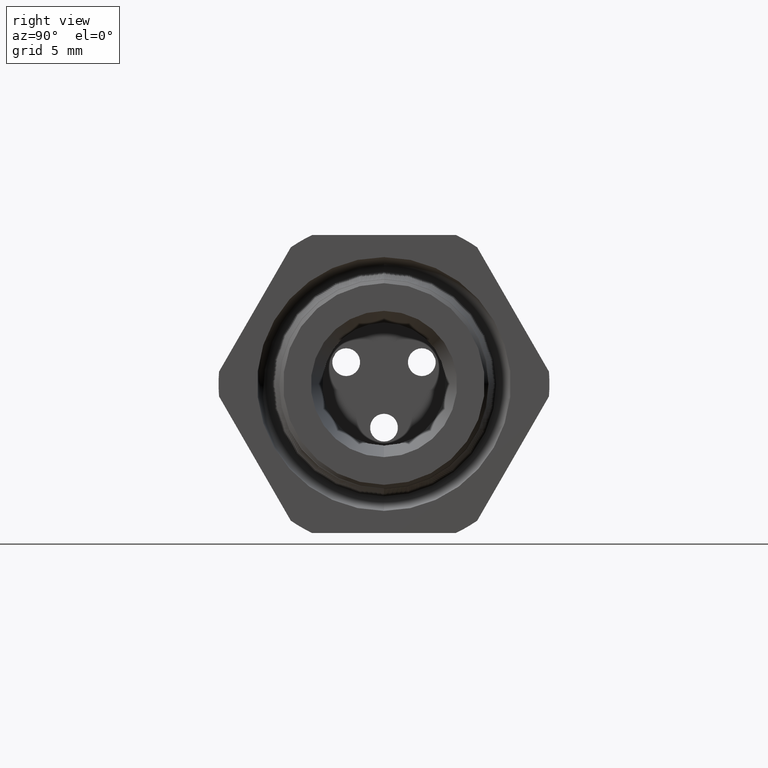
[diagram: clean part render]
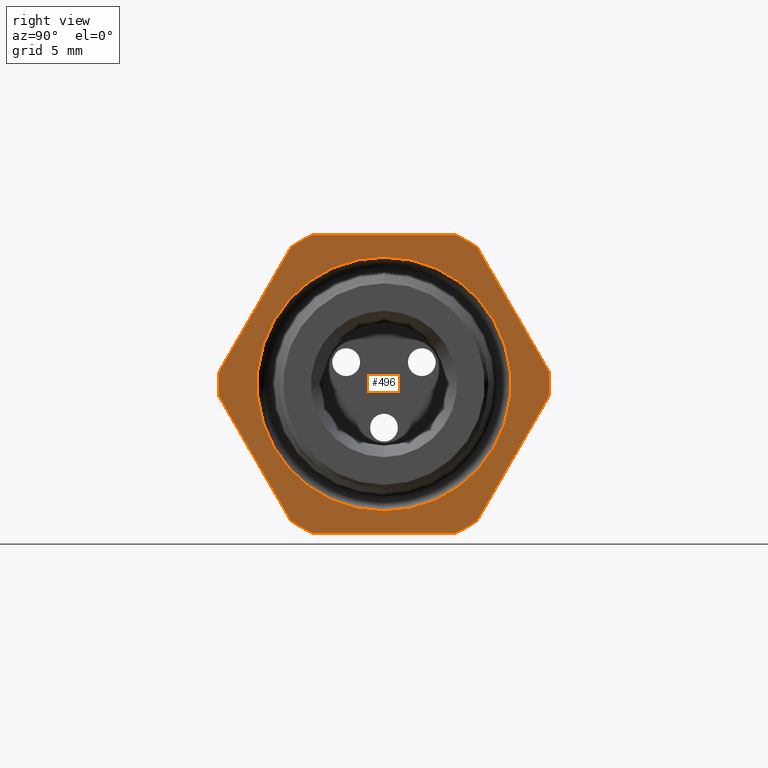
[diagram: same view with one face highlighted and labeled with its STEP entity id]
A machine part, right view. The second image highlights one B-rep face of the part: STEP entity #496.
In plain terms, the highlighted planar face has unit normal (1, 0, 0).
Its self-contained STEP definition (entity closure, byte-faithful):
#478 = EDGE_CURVE ( 'NONE', #561, #479, #2680, .T. ) ;
#479 = VERTEX_POINT ( 'NONE', #2675 ) ;
#480 = ORIENTED_EDGE ( 'NONE', *, *, #481, .T. ) ;
#481 = EDGE_CURVE ( 'NONE', #479, #482, #2674, .T. ) ;
#482 = VERTEX_POINT ( 'NONE', #2670 ) ;
#483 = ORIENTED_EDGE ( 'NONE', *, *, #484, .T. ) ;
#484 = EDGE_CURVE ( 'NONE', #482, #485, #2668, .T. ) ;
#485 = VERTEX_POINT ( 'NONE', #2728 ) ;
#486 = ORIENTED_EDGE ( 'NONE', *, *, #487, .T. ) ;
#487 = EDGE_CURVE ( 'NONE', #485, #488, #2727, .T. ) ;
#488 = VERTEX_POINT ( 'NONE', #2723 ) ;
#489 = VERTEX_POINT ( 'NONE', #2722 ) ;
#496 = ADVANCED_FACE ( 'NONE', ( #2711, #2710 ), #2709, .T. ) ;
#497 = EDGE_LOOP ( 'NONE', ( #498, #500 ) ) ;
#498 = ORIENTED_EDGE ( 'NONE', *, *, #499, .F. ) ;
#499 = EDGE_CURVE ( 'NONE', #1290, #1219, #2703, .T. ) ;
#500 = ORIENTED_EDGE ( 'NONE', *, *, #1225, .F. ) ;
#501 = EDGE_LOOP ( 'NONE', ( #502, #562, #480, #483, #486, #546, #548, #551, #554, #557, #534, #536 ) ) ;
#502 = ORIENTED_EDGE ( 'NONE', *, *, #503, .T. ) ;
#503 = EDGE_CURVE ( 'NONE', #504, #561, #2698, .T. ) ;
#504 = VERTEX_POINT ( 'NONE', #2752 ) ;
#534 = ORIENTED_EDGE ( 'NONE', *, *, #535, .T. ) ;
#535 = EDGE_CURVE ( 'NONE', #559, #560, #2802, .T. ) ;
#536 = ORIENTED_EDGE ( 'NONE', *, *, #537, .T. ) ;
#537 = EDGE_CURVE ( 'NONE', #560, #504, #2798, .T. ) ;
#546 = ORIENTED_EDGE ( 'NONE', *, *, #547, .T. ) ;
#547 = EDGE_CURVE ( 'NONE', #488, #489, #2840, .T. ) ;
#548 = ORIENTED_EDGE ( 'NONE', *, *, #549, .T. ) ;
#549 = EDGE_CURVE ( 'NONE', #489, #550, #2835, .T. ) ;
#550 = VERTEX_POINT ( 'NONE', #2831 ) ;
#551 = ORIENTED_EDGE ( 'NONE', *, *, #552, .T. ) ;
#552 = EDGE_CURVE ( 'NONE', #550, #553, #2830, .T. ) ;
#553 = VERTEX_POINT ( 'NONE', #2825 ) ;
#554 = ORIENTED_EDGE ( 'NONE', *, *, #555, .T. ) ;
#555 = EDGE_CURVE ( 'NONE', #553, #556, #2824, .T. ) ;
#556 = VERTEX_POINT ( 'NONE', #2820 ) ;
#557 = ORIENTED_EDGE ( 'NONE', *, *, #558, .T. ) ;
#558 = EDGE_CURVE ( 'NONE', #556, #559, #2819, .T. ) ;
#559 = VERTEX_POINT ( 'NONE', #2879 ) ;
#560 = VERTEX_POINT ( 'NONE', #2878 ) ;
#561 = VERTEX_POINT ( 'NONE', #2877 ) ;
#562 = ORIENTED_EDGE ( 'NONE', *, *, #478, .T. ) ;
#1219 = VERTEX_POINT ( 'NONE', #3759 ) ;
#1225 = EDGE_CURVE ( 'NONE', #1219, #1290, #3814, .T. ) ;
#1290 = VERTEX_POINT ( 'NONE', #3899 ) ;
#2664 = DIRECTION ( 'NONE',  ( 0.0000000000000000000, 0.0000000000000000000, -1.000000000000000000 ) ) ;
#2665 = DIRECTION ( 'NONE',  ( 1.000000000000000000, 0.0000000000000000000, 0.0000000000000000000 ) ) ;
#2666 = CARTESIAN_POINT ( 'NONE',  ( -0.3100000000000000000, 0.0000000000000000000, 0.0000000000000000000 ) ) ;
#2667 = AXIS2_PLACEMENT_3D ( 'NONE', #2666, #2665, #2664 ) ;
#2668 = CIRCLE ( 'NONE', #2667, 0.4162500000000000100 ) ;
#2670 = CARTESIAN_POINT ( 'NONE',  ( -0.3100000000000000000, 0.2344281053908204600, 0.3439586107409878800 ) ) ;
#2671 = DIRECTION ( 'NONE',  ( 0.0000000000000000000, -0.5000000000000000000, 0.8660254037844386000 ) ) ;
#2672 = VECTOR ( 'NONE', #2671, 39.37007874015748900 ) ;
#2673 = CARTESIAN_POINT ( 'NONE',  ( -0.3100000000000000000, 0.5122595264191646100, -0.1372595264191645300 ) ) ;
#2674 = LINE ( 'NONE', #2673, #2672 ) ;
#2675 = CARTESIAN_POINT ( 'NONE',  ( -0.3100000000000000000, 0.4150909474475088000, 0.03104138925901233800 ) ) ;
#2676 = DIRECTION ( 'NONE',  ( 0.0000000000000000000, 0.0000000000000000000, -1.000000000000000000 ) ) ;
#2677 = DIRECTION ( 'NONE',  ( 1.000000000000000000, 0.0000000000000000000, 0.0000000000000000000 ) ) ;
#2678 = CARTESIAN_POINT ( 'NONE',  ( -0.3100000000000000000, 0.0000000000000000000, 0.0000000000000000000 ) ) ;
#2679 = AXIS2_PLACEMENT_3D ( 'NONE', #2678, #2677, #2676 ) ;
#2680 = CIRCLE ( 'NONE', #2679, 0.4162500000000000100 ) ;
#2698 = LINE ( 'NONE', #2704, #2754 ) ;
#2699 = DIRECTION ( 'NONE',  ( 0.0000000000000000000, 0.0000000000000000000, -1.000000000000000000 ) ) ;
#2700 = DIRECTION ( 'NONE',  ( 1.000000000000000000, 0.0000000000000000000, 0.0000000000000000000 ) ) ;
#2701 = CARTESIAN_POINT ( 'NONE',  ( -0.3100000000000000000, 0.0000000000000000000, 0.0000000000000000000 ) ) ;
#2702 = AXIS2_PLACEMENT_3D ( 'NONE', #2701, #2700, #2699 ) ;
#2703 = CIRCLE ( 'NONE', #2702, 0.3192456312392315000 ) ;
#2704 = CARTESIAN_POINT ( 'NONE',  ( -0.3100000000000000000, 0.5122595264191645000, 0.1372595264191645600 ) ) ;
#2705 = DIRECTION ( 'NONE',  ( 0.0000000000000000000, 0.0000000000000000000, -1.000000000000000000 ) ) ;
#2706 = DIRECTION ( 'NONE',  ( 1.000000000000000000, 0.0000000000000000000, 0.0000000000000000000 ) ) ;
#2707 = CARTESIAN_POINT ( 'NONE',  ( -0.3100000000000000000, 0.7500000000000002200, 0.0000000000000000000 ) ) ;
#2708 = AXIS2_PLACEMENT_3D ( 'NONE', #2707, #2706, #2705 ) ;
#2709 = PLANE ( 'NONE',  #2708 ) ;
#2710 = FACE_OUTER_BOUND ( 'NONE', #501, .T. ) ;
#2711 = FACE_BOUND ( 'NONE', #497, .T. ) ;
#2722 = CARTESIAN_POINT ( 'NONE',  ( -0.3100000000000000000, -0.2344281053908204800, 0.3439586107409878200 ) ) ;
#2723 = CARTESIAN_POINT ( 'NONE',  ( -0.3100000000000000000, -0.1806628420566886700, 0.3749999999999999400 ) ) ;
#2724 = DIRECTION ( 'NONE',  ( 0.0000000000000000000, -1.000000000000000000, 0.0000000000000000000 ) ) ;
#2725 = VECTOR ( 'NONE', #2724, 39.37007874015748100 ) ;
#2726 = CARTESIAN_POINT ( 'NONE',  ( -0.3100000000000000000, 0.7500000000000002200, 0.3749999999999999400 ) ) ;
#2727 = LINE ( 'NONE', #2726, #2725 ) ;
#2728 = CARTESIAN_POINT ( 'NONE',  ( -0.3100000000000000000, 0.1806628420566886700, 0.3749999999999999400 ) ) ;
#2752 = CARTESIAN_POINT ( 'NONE',  ( -0.3100000000000000000, 0.2344281053908202900, -0.3439586107409879900 ) ) ;
#2753 = DIRECTION ( 'NONE',  ( 0.0000000000000000000, 0.4999999999999998900, 0.8660254037844386000 ) ) ;
#2754 = VECTOR ( 'NONE', #2753, 39.37007874015748900 ) ;
#2794 = DIRECTION ( 'NONE',  ( 0.0000000000000000000, 0.0000000000000000000, -1.000000000000000000 ) ) ;
#2795 = DIRECTION ( 'NONE',  ( 1.000000000000000000, 0.0000000000000000000, 0.0000000000000000000 ) ) ;
#2796 = CARTESIAN_POINT ( 'NONE',  ( -0.3100000000000000000, 0.0000000000000000000, 0.0000000000000000000 ) ) ;
#2797 = AXIS2_PLACEMENT_3D ( 'NONE', #2796, #2795, #2794 ) ;
#2798 = CIRCLE ( 'NONE', #2797, 0.4162500000000000100 ) ;
#2799 = DIRECTION ( 'NONE',  ( 0.0000000000000000000, 1.000000000000000000, 0.0000000000000000000 ) ) ;
#2800 = VECTOR ( 'NONE', #2799, 39.37007874015748100 ) ;
#2801 = CARTESIAN_POINT ( 'NONE',  ( -0.3100000000000000000, 0.7500000000000002200, -0.3750000000000001100 ) ) ;
#2802 = LINE ( 'NONE', #2801, #2800 ) ;
#2819 = CIRCLE ( 'NONE', #2883, 0.4162500000000000100 ) ;
#2820 = CARTESIAN_POINT ( 'NONE',  ( -0.3100000000000000000, -0.2344281053908202100, -0.3439586107409880500 ) ) ;
#2821 = DIRECTION ( 'NONE',  ( 0.0000000000000000000, 0.5000000000000000000, -0.8660254037844386000 ) ) ;
#2822 = VECTOR ( 'NONE', #2821, 39.37007874015748900 ) ;
#2823 = CARTESIAN_POINT ( 'NONE',  ( -0.3100000000000000000, -0.1372595264191644200, -0.5122595264191646100 ) ) ;
#2824 = LINE ( 'NONE', #2823, #2822 ) ;
#2825 = CARTESIAN_POINT ( 'NONE',  ( -0.3100000000000000000, -0.4150909474475088000, -0.03104138925901222700 ) ) ;
#2826 = DIRECTION ( 'NONE',  ( 0.0000000000000000000, 0.0000000000000000000, -1.000000000000000000 ) ) ;
#2827 = DIRECTION ( 'NONE',  ( 1.000000000000000000, 0.0000000000000000000, 0.0000000000000000000 ) ) ;
#2828 = CARTESIAN_POINT ( 'NONE',  ( -0.3100000000000000000, 0.0000000000000000000, 0.0000000000000000000 ) ) ;
#2829 = AXIS2_PLACEMENT_3D ( 'NONE', #2828, #2827, #2826 ) ;
#2830 = CIRCLE ( 'NONE', #2829, 0.4162500000000001200 ) ;
#2831 = CARTESIAN_POINT ( 'NONE',  ( -0.3100000000000000000, -0.4150909474475088500, 0.03104138925901205400 ) ) ;
#2832 = DIRECTION ( 'NONE',  ( 0.0000000000000000000, -0.4999999999999998300, -0.8660254037844388200 ) ) ;
#2833 = VECTOR ( 'NONE', #2832, 39.37007874015748100 ) ;
#2834 = CARTESIAN_POINT ( 'NONE',  ( -0.3100000000000000000, -0.1372595264191647000, 0.5122595264191645000 ) ) ;
#2835 = LINE ( 'NONE', #2834, #2833 ) ;
#2836 = DIRECTION ( 'NONE',  ( 0.0000000000000000000, 0.0000000000000000000, -1.000000000000000000 ) ) ;
#2837 = DIRECTION ( 'NONE',  ( 1.000000000000000000, 0.0000000000000000000, 0.0000000000000000000 ) ) ;
#2838 = CARTESIAN_POINT ( 'NONE',  ( -0.3100000000000000000, 0.0000000000000000000, 0.0000000000000000000 ) ) ;
#2839 = AXIS2_PLACEMENT_3D ( 'NONE', #2838, #2837, #2836 ) ;
#2840 = CIRCLE ( 'NONE', #2839, 0.4162500000000000100 ) ;
#2877 = CARTESIAN_POINT ( 'NONE',  ( -0.3100000000000000000, 0.4150909474475087400, -0.03104138925901206400 ) ) ;
#2878 = CARTESIAN_POINT ( 'NONE',  ( -0.3100000000000000000, 0.1806628420566884800, -0.3750000000000001100 ) ) ;
#2879 = CARTESIAN_POINT ( 'NONE',  ( -0.3100000000000000000, -0.1806628420566883900, -0.3750000000000001100 ) ) ;
#2880 = DIRECTION ( 'NONE',  ( 0.0000000000000000000, 0.0000000000000000000, -1.000000000000000000 ) ) ;
#2881 = DIRECTION ( 'NONE',  ( 1.000000000000000000, 0.0000000000000000000, 0.0000000000000000000 ) ) ;
#2882 = CARTESIAN_POINT ( 'NONE',  ( -0.3100000000000000000, 0.0000000000000000000, 0.0000000000000000000 ) ) ;
#2883 = AXIS2_PLACEMENT_3D ( 'NONE', #2882, #2881, #2880 ) ;
#3759 = CARTESIAN_POINT ( 'NONE',  ( -0.3100000000000000000, 3.909631404389011900E-017, 0.3192456312392315000 ) ) ;
#3810 = DIRECTION ( 'NONE',  ( 0.0000000000000000000, 0.0000000000000000000, -1.000000000000000000 ) ) ;
#3811 = DIRECTION ( 'NONE',  ( 1.000000000000000000, 0.0000000000000000000, 0.0000000000000000000 ) ) ;
#3812 = CARTESIAN_POINT ( 'NONE',  ( -0.3100000000000000000, 0.0000000000000000000, 0.0000000000000000000 ) ) ;
#3813 = AXIS2_PLACEMENT_3D ( 'NONE', #3812, #3811, #3810 ) ;
#3814 = CIRCLE ( 'NONE', #3813, 0.3192456312392315000 ) ;
#3899 = CARTESIAN_POINT ( 'NONE',  ( -0.3100000000000000000, 0.0000000000000000000, -0.3192456312392315000 ) ) ;